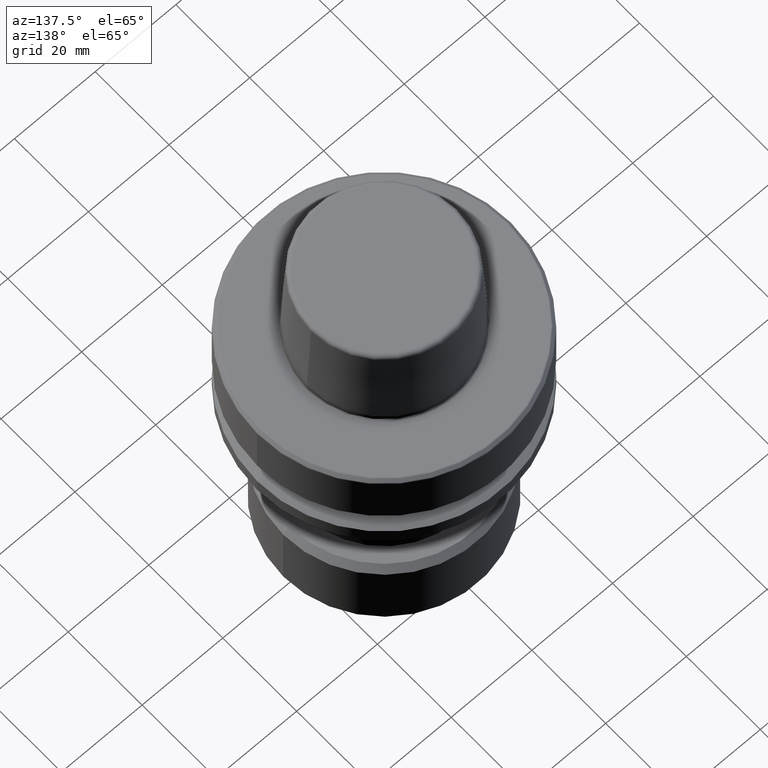
[diagram: clean part render]
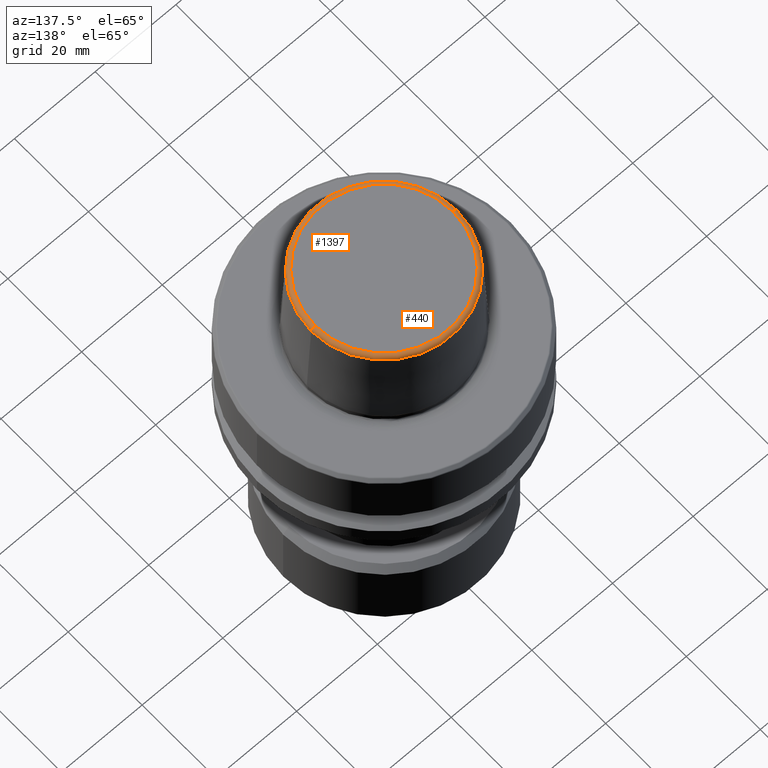
[diagram: same view with one multi-face feature highlighted, each face labeled with its STEP entity id]
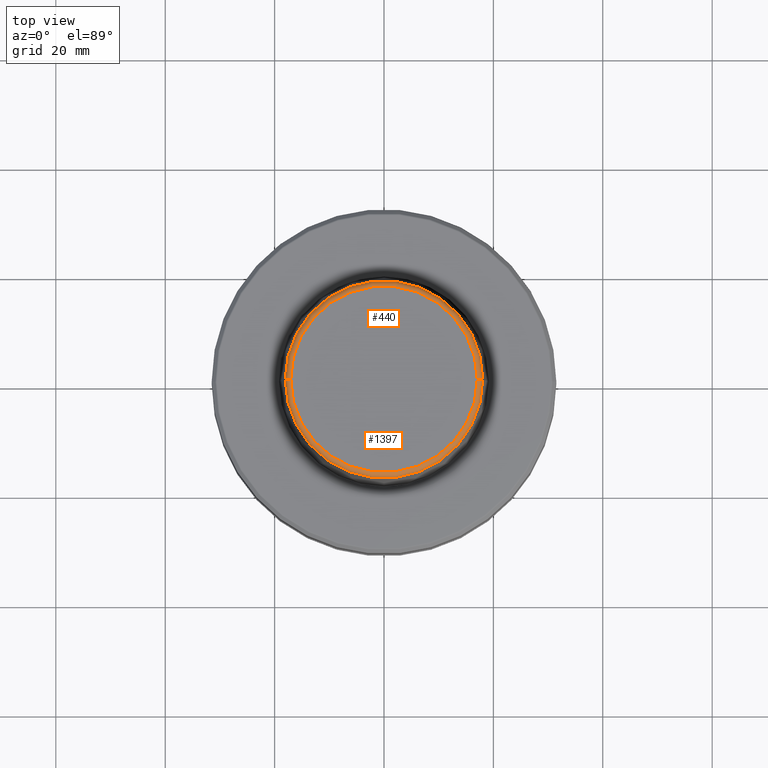
[diagram: same view with one multi-face feature highlighted, each face labeled with its STEP entity id]
A machine part, auxiliary view. The highlighted faces form ONE feature: a constant-radius fillet chain: 2 tangent blend faces with common blend radius 1 mm. The faces share edges in the B-rep.
A second angle (top view) of the same feature is appended — it is thin or edge-on in the first view.
Their STEP definitions:
[1] entity #440 (Torus):
#72 = FACE_OUTER_BOUND ( 'NONE', #1101, .T. ) ;
#97 = VERTEX_POINT ( 'NONE', #569 ) ;
#141 = CIRCLE ( 'NONE', #513, 1.000000000000004400 ) ;
#276 = CIRCLE ( 'NONE', #314, 18.05608644688143700 ) ;
#314 = AXIS2_PLACEMENT_3D ( 'NONE', #1167, #435, #1287 ) ;
#373 = CARTESIAN_POINT ( 'NONE',  ( -17.05733782493466300, 2.150077132079128300E-015, 19.89999999999999900 ) ) ;
#402 = TOROIDAL_SURFACE ( 'NONE', #671, 17.05733782493465600, 1.000000000000003800 ) ;
#435 = DIRECTION ( 'NONE',  ( -0.0000000000000000000, -0.0000000000000000000, 1.000000000000000000 ) ) ;
#440 = ADVANCED_FACE ( 'NONE', ( #72 ), #402, .T. ) ;
#474 = CARTESIAN_POINT ( 'NONE',  ( -18.05608644688143700, 0.0000000000000000000, 18.95001190017800500 ) ) ;
#513 = AXIS2_PLACEMENT_3D ( 'NONE', #1365, #637, #1496 ) ;
#523 = CARTESIAN_POINT ( 'NONE',  ( 0.0000000000000000000, 0.0000000000000000000, 18.89999999999999500 ) ) ;
#569 = CARTESIAN_POINT ( 'NONE',  ( 18.05608644688143700, 2.278535592386617200E-015, 18.95001190017800500 ) ) ;
#597 = ORIENTED_EDGE ( 'NONE', *, *, #769, .F. ) ;
#599 = CARTESIAN_POINT ( 'NONE',  ( 17.05733782493466300, 0.0000000000000000000, 19.89999999999999900 ) ) ;
#637 = DIRECTION ( 'NONE',  ( 0.0000000000000000000, -1.000000000000000000, 0.0000000000000000000 ) ) ;
#638 = DIRECTION ( 'NONE',  ( 1.000000000000000000, 0.0000000000000000000, 0.0000000000000000000 ) ) ;
#654 = EDGE_CURVE ( 'NONE', #97, #1050, #276, .T. ) ;
#671 = AXIS2_PLACEMENT_3D ( 'NONE', #523, #1128, #638 ) ;
#701 = DIRECTION ( 'NONE',  ( -0.0000000000000000000, -0.0000000000000000000, 1.000000000000000000 ) ) ;
#725 = DIRECTION ( 'NONE',  ( 1.224646799147353200E-016, 1.000000000000000000, 0.0000000000000000000 ) ) ;
#769 = EDGE_CURVE ( 'NONE', #812, #1222, #1035, .T. ) ;
#812 = VERTEX_POINT ( 'NONE', #599 ) ;
#950 = CIRCLE ( 'NONE', #1354, 1.000000000000004400 ) ;
#1035 = CIRCLE ( 'NONE', #1053, 17.05733782493466300 ) ;
#1050 = VERTEX_POINT ( 'NONE', #474 ) ;
#1053 = AXIS2_PLACEMENT_3D ( 'NONE', #1432, #701, #1563 ) ;
#1101 = EDGE_LOOP ( 'NONE', ( #1330, #1517, #597, #1143 ) ) ;
#1128 = DIRECTION ( 'NONE',  ( -0.0000000000000000000, -0.0000000000000000000, 1.000000000000000000 ) ) ;
#1143 = ORIENTED_EDGE ( 'NONE', *, *, #1261, .F. ) ;
#1147 = EDGE_CURVE ( 'NONE', #1050, #1222, #950, .T. ) ;
#1167 = CARTESIAN_POINT ( 'NONE',  ( 0.0000000000000000000, 0.0000000000000000000, 18.95001190017800500 ) ) ;
#1222 = VERTEX_POINT ( 'NONE', #373 ) ;
#1261 = EDGE_CURVE ( 'NONE', #97, #812, #141, .T. ) ;
#1287 = DIRECTION ( 'NONE',  ( 1.000000000000000000, 0.0000000000000000000, 0.0000000000000000000 ) ) ;
#1330 = ORIENTED_EDGE ( 'NONE', *, *, #654, .T. ) ;
#1354 = AXIS2_PLACEMENT_3D ( 'NONE', #1463, #725, #1589 ) ;
#1365 = CARTESIAN_POINT ( 'NONE',  ( 17.05733782493465600, 0.0000000000000000000, 18.89999999999999500 ) ) ;
#1432 = CARTESIAN_POINT ( 'NONE',  ( 0.0000000000000000000, 0.0000000000000000000, 19.89999999999999900 ) ) ;
#1463 = CARTESIAN_POINT ( 'NONE',  ( -17.05733782493465600, 2.088921416928130400E-015, 18.89999999999999500 ) ) ;
#1496 = DIRECTION ( 'NONE',  ( 0.0000000000000000000, 0.0000000000000000000, -1.000000000000000000 ) ) ;
#1517 = ORIENTED_EDGE ( 'NONE', *, *, #1147, .T. ) ;
#1563 = DIRECTION ( 'NONE',  ( 1.000000000000000000, 0.0000000000000000000, 0.0000000000000000000 ) ) ;
#1589 = DIRECTION ( 'NONE',  ( -1.000000000000000000, 1.224646799147352700E-016, 0.0000000000000000000 ) ) ;
[2] entity #1397 (Torus):
#25 = FACE_OUTER_BOUND ( 'NONE', #377, .T. ) ;
#39 = DIRECTION ( 'NONE',  ( -0.0000000000000000000, -0.0000000000000000000, 1.000000000000000000 ) ) ;
#41 = DIRECTION ( 'NONE',  ( 1.000000000000000000, 0.0000000000000000000, 0.0000000000000000000 ) ) ;
#42 = ORIENTED_EDGE ( 'NONE', *, *, #1261, .T. ) ;
#44 = CARTESIAN_POINT ( 'NONE',  ( 0.0000000000000000000, 0.0000000000000000000, 18.89999999999999500 ) ) ;
#84 = ORIENTED_EDGE ( 'NONE', *, *, #529, .T. ) ;
#97 = VERTEX_POINT ( 'NONE', #569 ) ;
#132 = AXIS2_PLACEMENT_3D ( 'NONE', #44, #540, #1150 ) ;
#141 = CIRCLE ( 'NONE', #513, 1.000000000000004400 ) ;
#248 = ORIENTED_EDGE ( 'NONE', *, *, #1007, .F. ) ;
#373 = CARTESIAN_POINT ( 'NONE',  ( -17.05733782493466300, 2.150077132079128300E-015, 19.89999999999999900 ) ) ;
#377 = EDGE_LOOP ( 'NONE', ( #988, #84, #42, #248 ) ) ;
#474 = CARTESIAN_POINT ( 'NONE',  ( -18.05608644688143700, 0.0000000000000000000, 18.95001190017800500 ) ) ;
#513 = AXIS2_PLACEMENT_3D ( 'NONE', #1365, #637, #1496 ) ;
#529 = EDGE_CURVE ( 'NONE', #1050, #97, #1079, .T. ) ;
#540 = DIRECTION ( 'NONE',  ( -0.0000000000000000000, -0.0000000000000000000, 1.000000000000000000 ) ) ;
#569 = CARTESIAN_POINT ( 'NONE',  ( 18.05608644688143700, 2.278535592386617200E-015, 18.95001190017800500 ) ) ;
#599 = CARTESIAN_POINT ( 'NONE',  ( 17.05733782493466300, 0.0000000000000000000, 19.89999999999999900 ) ) ;
#637 = DIRECTION ( 'NONE',  ( 0.0000000000000000000, -1.000000000000000000, 0.0000000000000000000 ) ) ;
#725 = DIRECTION ( 'NONE',  ( 1.224646799147353200E-016, 1.000000000000000000, 0.0000000000000000000 ) ) ;
#772 = DIRECTION ( 'NONE',  ( -0.0000000000000000000, -0.0000000000000000000, 1.000000000000000000 ) ) ;
#812 = VERTEX_POINT ( 'NONE', #599 ) ;
#950 = CIRCLE ( 'NONE', #1354, 1.000000000000004400 ) ;
#964 = TOROIDAL_SURFACE ( 'NONE', #132, 17.05733782493465600, 1.000000000000003800 ) ;
#988 = ORIENTED_EDGE ( 'NONE', *, *, #1147, .F. ) ;
#1007 = EDGE_CURVE ( 'NONE', #1222, #812, #1351, .T. ) ;
#1015 = CARTESIAN_POINT ( 'NONE',  ( 0.0000000000000000000, 0.0000000000000000000, 19.89999999999999900 ) ) ;
#1050 = VERTEX_POINT ( 'NONE', #474 ) ;
#1079 = CIRCLE ( 'NONE', #1085, 18.05608644688143700 ) ;
#1085 = AXIS2_PLACEMENT_3D ( 'NONE', #1509, #772, #41 ) ;
#1147 = EDGE_CURVE ( 'NONE', #1050, #1222, #950, .T. ) ;
#1150 = DIRECTION ( 'NONE',  ( 1.000000000000000000, 0.0000000000000000000, 0.0000000000000000000 ) ) ;
#1222 = VERTEX_POINT ( 'NONE', #373 ) ;
#1261 = EDGE_CURVE ( 'NONE', #97, #812, #141, .T. ) ;
#1268 = DIRECTION ( 'NONE',  ( 1.000000000000000000, 0.0000000000000000000, 0.0000000000000000000 ) ) ;
#1351 = CIRCLE ( 'NONE', #1358, 17.05733782493466300 ) ;
#1354 = AXIS2_PLACEMENT_3D ( 'NONE', #1463, #725, #1589 ) ;
#1358 = AXIS2_PLACEMENT_3D ( 'NONE', #1015, #39, #1268 ) ;
#1365 = CARTESIAN_POINT ( 'NONE',  ( 17.05733782493465600, 0.0000000000000000000, 18.89999999999999500 ) ) ;
#1397 = ADVANCED_FACE ( 'NONE', ( #25 ), #964, .T. ) ;
#1463 = CARTESIAN_POINT ( 'NONE',  ( -17.05733782493465600, 2.088921416928130400E-015, 18.89999999999999500 ) ) ;
#1496 = DIRECTION ( 'NONE',  ( 0.0000000000000000000, 0.0000000000000000000, -1.000000000000000000 ) ) ;
#1509 = CARTESIAN_POINT ( 'NONE',  ( 0.0000000000000000000, 0.0000000000000000000, 18.95001190017800500 ) ) ;
#1589 = DIRECTION ( 'NONE',  ( -1.000000000000000000, 1.224646799147352700E-016, 0.0000000000000000000 ) ) ;